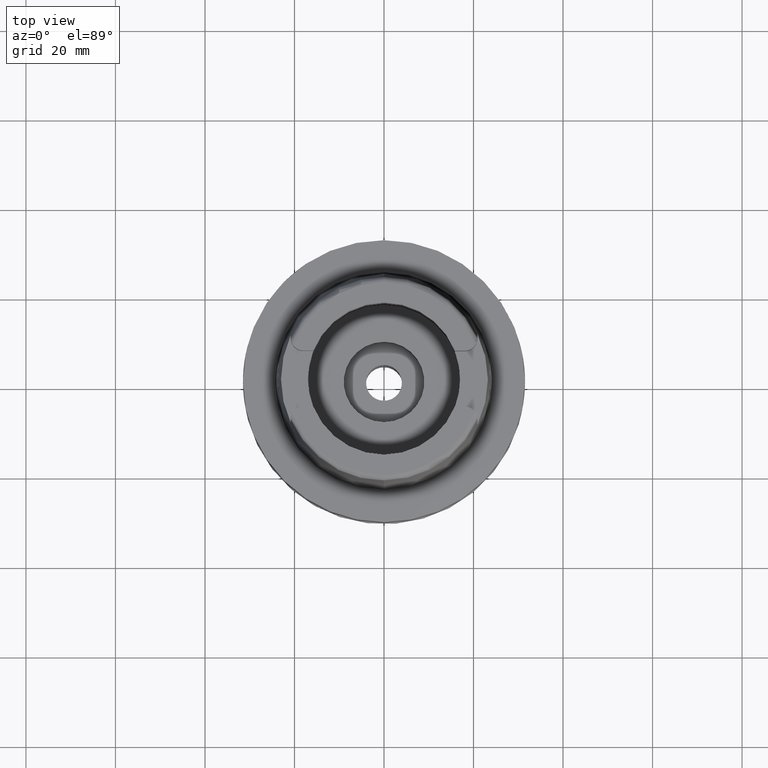
[diagram: clean part render]
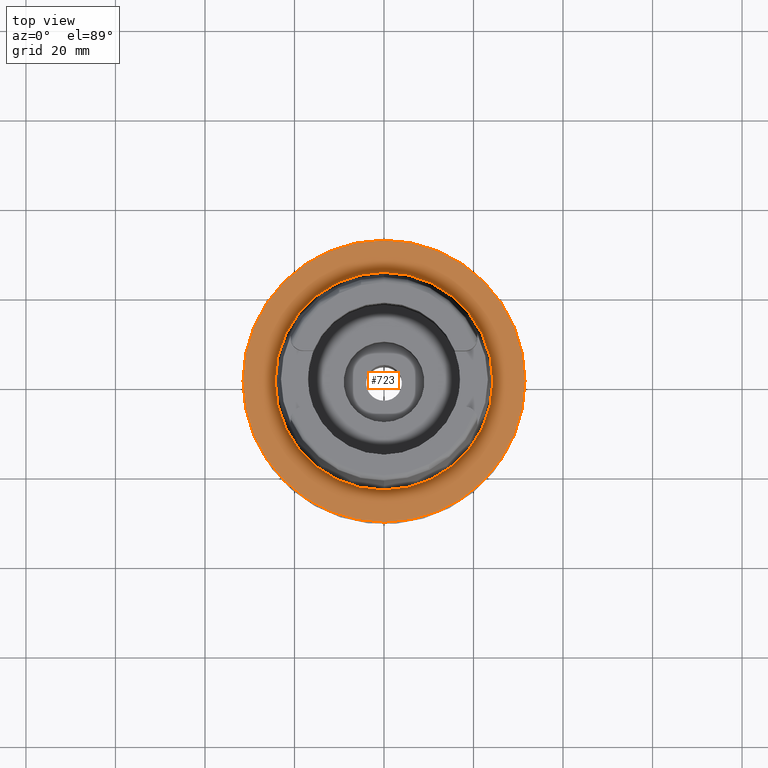
[diagram: same view with one face highlighted and labeled with its STEP entity id]
A machine part, top view. The second image highlights one B-rep face of the part: STEP entity #723.
In plain terms, the highlighted planar face has unit normal (0, 0, 1).
Its self-contained STEP definition (entity closure, byte-faithful):
#94 = CARTESIAN_POINT ( 'NONE',  ( 0.0000000000000000000, 0.0000000000000000000, -1.705302565823999926E-12 ) ) ;
#108 = FACE_BOUND ( 'NONE', #4314, .T. ) ;
#301 = DIRECTION ( 'NONE',  ( 0.0000000000000000000, 0.0000000000000000000, -1.000000000000000000 ) ) ;
#390 = VERTEX_POINT ( 'NONE', #1221 ) ;
#489 = DIRECTION ( 'NONE',  ( 1.000000000000000000, 0.0000000000000000000, 0.0000000000000000000 ) ) ;
#720 = DIRECTION ( 'NONE',  ( 0.0000000000000000000, 0.0000000000000000000, 1.000000000000000000 ) ) ;
#723 = ADVANCED_FACE ( 'NONE', ( #3916, #108 ), #1743, .T. ) ;
#848 = AXIS2_PLACEMENT_3D ( 'NONE', #3076, #4725, #489 ) ;
#936 = EDGE_CURVE ( 'NONE', #390, #1781, #2007, .T. ) ;
#1190 = CARTESIAN_POINT ( 'NONE',  ( 0.0000000000000000000, 0.0000000000000000000, -1.705302565823999926E-12 ) ) ;
#1214 = DIRECTION ( 'NONE',  ( 0.0000000000000000000, -1.000000000000000000, 0.0000000000000000000 ) ) ;
#1221 = CARTESIAN_POINT ( 'NONE',  ( 0.0000000000000000000, -31.50000000000000000, 0.0000000000000000000 ) ) ;
#1241 = CARTESIAN_POINT ( 'NONE',  ( 0.0000000000000000000, 0.0000000000000000000, 0.0000000000000000000 ) ) ;
#1253 = CARTESIAN_POINT ( 'NONE',  ( 0.0000000000000000000, 31.50000000000000000, 0.0000000000000000000 ) ) ;
#1382 = CIRCLE ( 'NONE', #1637, 24.31503482328999866 ) ;
#1452 = EDGE_CURVE ( 'NONE', #2542, #3554, #1382, .T. ) ;
#1637 = AXIS2_PLACEMENT_3D ( 'NONE', #94, #3849, #2614 ) ;
#1743 = PLANE ( 'NONE',  #848 ) ;
#1781 = VERTEX_POINT ( 'NONE', #1253 ) ;
#2007 = CIRCLE ( 'NONE', #4759, 31.50000000000000000 ) ;
#2208 = ORIENTED_EDGE ( 'NONE', *, *, #4163, .F. ) ;
#2426 = DIRECTION ( 'NONE',  ( 0.0000000000000000000, 1.000000000000000000, 0.0000000000000000000 ) ) ;
#2542 = VERTEX_POINT ( 'NONE', #3026 ) ;
#2614 = DIRECTION ( 'NONE',  ( 0.0000000000000000000, 1.000000000000000000, 0.0000000000000000000 ) ) ;
#3026 = CARTESIAN_POINT ( 'NONE',  ( 0.0000000000000000000, 24.31503482328999866, -1.705302565823999926E-12 ) ) ;
#3076 = CARTESIAN_POINT ( 'NONE',  ( 0.0000000000000000000, 0.0000000000000000000, 0.0000000000000000000 ) ) ;
#3359 = CIRCLE ( 'NONE', #4776, 31.50000000000000000 ) ;
#3488 = CARTESIAN_POINT ( 'NONE',  ( 0.0000000000000000000, -24.31503482328999866, -9.485745522396998208E-13 ) ) ;
#3554 = VERTEX_POINT ( 'NONE', #3488 ) ;
#3849 = DIRECTION ( 'NONE',  ( 0.0000000000000000000, 0.0000000000000000000, 1.000000000000000000 ) ) ;
#3876 = EDGE_LOOP ( 'NONE', ( #4598, #4161 ) ) ;
#3916 = FACE_OUTER_BOUND ( 'NONE', #3876, .T. ) ;
#4161 = ORIENTED_EDGE ( 'NONE', *, *, #936, .F. ) ;
#4163 = EDGE_CURVE ( 'NONE', #3554, #2542, #4949, .T. ) ;
#4314 = EDGE_LOOP ( 'NONE', ( #4392, #2208 ) ) ;
#4392 = ORIENTED_EDGE ( 'NONE', *, *, #1452, .F. ) ;
#4417 = AXIS2_PLACEMENT_3D ( 'NONE', #1190, #720, #5386 ) ;
#4434 = DIRECTION ( 'NONE',  ( 0.0000000000000000000, 0.0000000000000000000, -1.000000000000000000 ) ) ;
#4598 = ORIENTED_EDGE ( 'NONE', *, *, #4623, .F. ) ;
#4623 = EDGE_CURVE ( 'NONE', #1781, #390, #3359, .T. ) ;
#4725 = DIRECTION ( 'NONE',  ( 0.0000000000000000000, 0.0000000000000000000, 1.000000000000000000 ) ) ;
#4759 = AXIS2_PLACEMENT_3D ( 'NONE', #1241, #301, #1214 ) ;
#4776 = AXIS2_PLACEMENT_3D ( 'NONE', #5196, #4434, #2426 ) ;
#4949 = CIRCLE ( 'NONE', #4417, 24.31503482328999866 ) ;
#5196 = CARTESIAN_POINT ( 'NONE',  ( 0.0000000000000000000, 0.0000000000000000000, 0.0000000000000000000 ) ) ;
#5386 = DIRECTION ( 'NONE',  ( 0.0000000000000000000, -1.000000000000000000, 0.0000000000000000000 ) ) ;